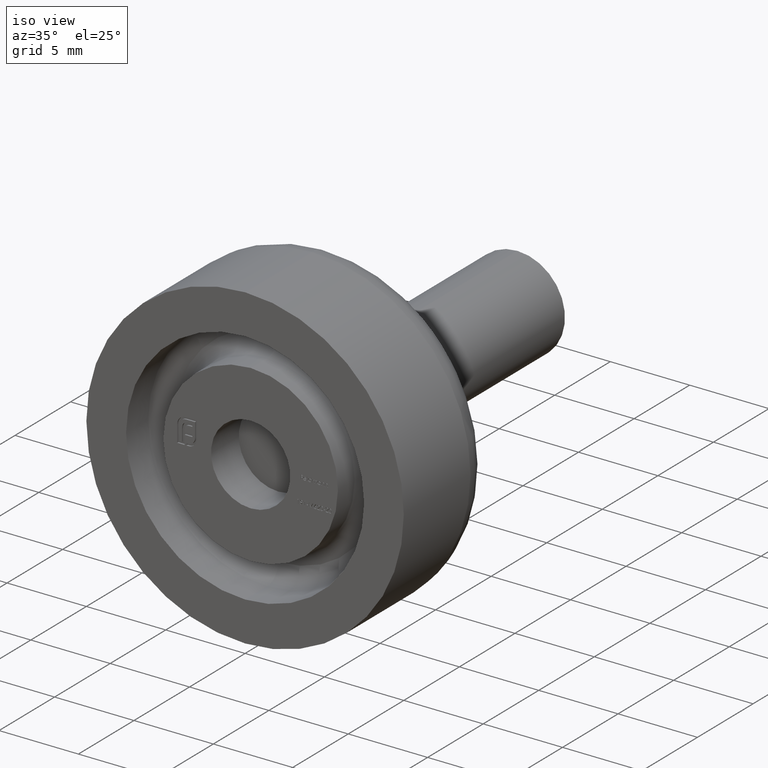
[diagram: clean part render]
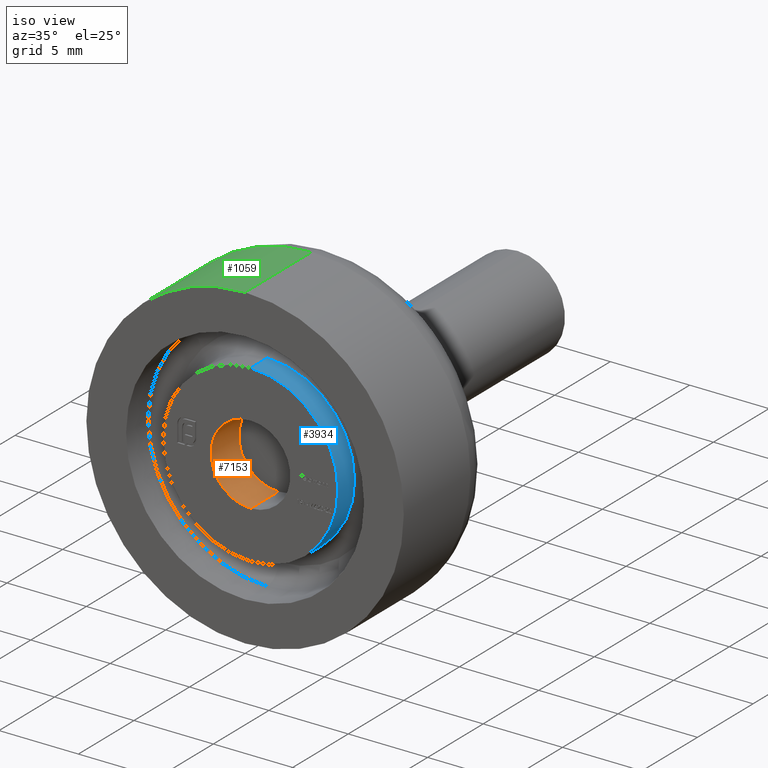
[diagram: same view with three faces highlighted in distinct colors, each labeled with its STEP entity id]
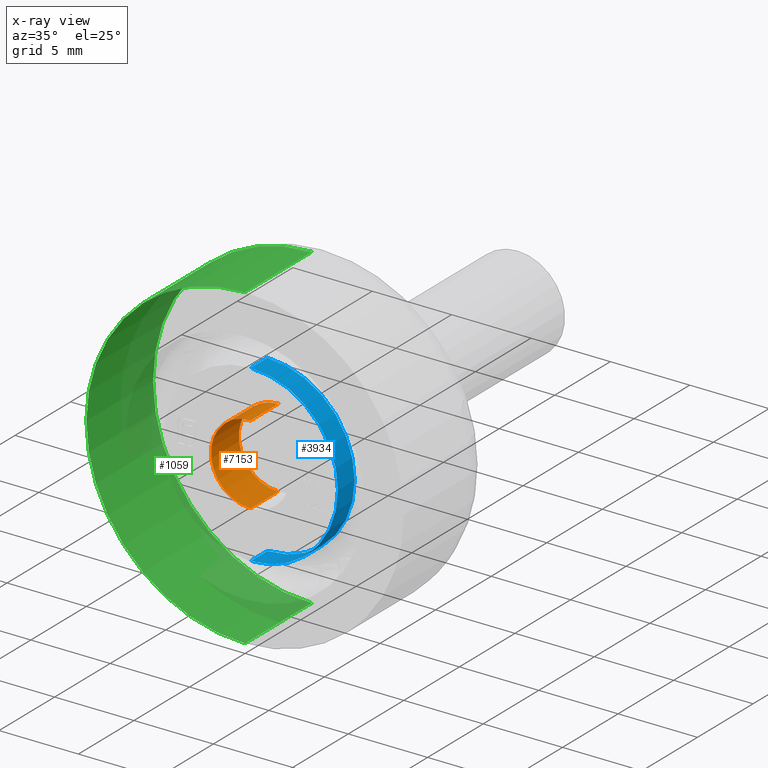
[diagram: x-ray of the same camera — body ghosted, the three highlighted faces saturated]
A machine part, iso view with three faces highlighted in distinct colors.
The next image is the same camera in x-ray (body ghosted, the three faces saturated) — at least one of them is partly hidden behind the body in this view.
Their STEP definitions:

[orange] entity #7153 — the highlighted cylindrical surface (partial cylindrical patch) has radius 2.5 mm, axis along (-0, 1, -0).
#451 = EDGE_CURVE ( 'NONE', #2375, #1538, #3740, .T. ) ;
#1047 = EDGE_CURVE ( 'NONE', #11882, #5082, #9180, .T. ) ;
#1098 = ORIENTED_EDGE ( 'NONE', *, *, #1047, .F. ) ;
#1327 = EDGE_LOOP ( 'NONE', ( #13178, #8715, #11558, #1098 ) ) ;
#1538 = VERTEX_POINT ( 'NONE', #7606 ) ;
#2375 = VERTEX_POINT ( 'NONE', #13333 ) ;
#3657 = CIRCLE ( 'NONE', #14172, 2.500000000000000000 ) ;
#3740 = LINE ( 'NONE', #11678, #6463 ) ;
#3771 = AXIS2_PLACEMENT_3D ( 'NONE', #10233, #9116, #13636 ) ;
#4021 = CYLINDRICAL_SURFACE ( 'NONE', #6062, 2.500000000000000000 ) ;
#4855 = CARTESIAN_POINT ( 'NONE',  ( 0.000000000000000000, -15.55634918610404682, 0.000000000000000000 ) ) ;
#5082 = VERTEX_POINT ( 'NONE', #7376 ) ;
#5354 = CARTESIAN_POINT ( 'NONE',  ( 0.000000000000000000, 0.5000000000000004441, 2.500000000000000000 ) ) ;
#5612 = DIRECTION ( 'NONE',  ( -0.000000000000000000, 1.000000000000000000, -0.000000000000000000 ) ) ;
#6062 = AXIS2_PLACEMENT_3D ( 'NONE', #4855, #12833, #11877 ) ;
#6228 = EDGE_CURVE ( 'NONE', #11882, #2375, #14678, .T. ) ;
#6463 = VECTOR ( 'NONE', #5612, 1000.000000000000000 ) ;
#6834 = CARTESIAN_POINT ( 'NONE',  ( 0.000000000000000000, 2.999999999999999112, 0.000000000000000000 ) ) ;
#7153 = ADVANCED_FACE ( 'NONE', ( #9100 ), #4021, .F. ) ;
#7376 = CARTESIAN_POINT ( 'NONE',  ( 0.000000000000000000, 2.999999999999999112, 2.500000000000000000 ) ) ;
#7606 = CARTESIAN_POINT ( 'NONE',  ( 3.061616997868383141E-16, 2.999999999999999112, -2.500000000000000000 ) ) ;
#8715 = ORIENTED_EDGE ( 'NONE', *, *, #451, .T. ) ;
#9100 = FACE_OUTER_BOUND ( 'NONE', #1327, .T. ) ;
#9116 = DIRECTION ( 'NONE',  ( -0.000000000000000000, -1.000000000000000000, -0.000000000000000000 ) ) ;
#9180 = LINE ( 'NONE', #10517, #13131 ) ;
#9313 = DIRECTION ( 'NONE',  ( -0.000000000000000000, 1.000000000000000000, -0.000000000000000000 ) ) ;
#10233 = CARTESIAN_POINT ( 'NONE',  ( 0.000000000000000000, 0.5000000000000004441, 0.000000000000000000 ) ) ;
#10517 = CARTESIAN_POINT ( 'NONE',  ( 0.000000000000000000, -15.55634918610404682, 2.500000000000000000 ) ) ;
#11558 = ORIENTED_EDGE ( 'NONE', *, *, #11909, .T. ) ;
#11678 = CARTESIAN_POINT ( 'NONE',  ( 3.061616997868383141E-16, -15.55634918610404682, -2.500000000000000000 ) ) ;
#11877 = DIRECTION ( 'NONE',  ( 0.000000000000000000, 0.000000000000000000, 1.000000000000000000 ) ) ;
#11882 = VERTEX_POINT ( 'NONE', #5354 ) ;
#11909 = EDGE_CURVE ( 'NONE', #1538, #5082, #3657, .T. ) ;
#12833 = DIRECTION ( 'NONE',  ( -0.000000000000000000, 1.000000000000000000, -0.000000000000000000 ) ) ;
#13131 = VECTOR ( 'NONE', #9313, 1000.000000000000000 ) ;
#13178 = ORIENTED_EDGE ( 'NONE', *, *, #6228, .T. ) ;
#13333 = CARTESIAN_POINT ( 'NONE',  ( 3.061616997868383141E-16, 0.5000000000000004441, -2.500000000000000000 ) ) ;
#13636 = DIRECTION ( 'NONE',  ( 0.000000000000000000, 0.000000000000000000, -1.000000000000000000 ) ) ;
#13876 = DIRECTION ( 'NONE',  ( 0.000000000000000000, 0.000000000000000000, -1.000000000000000000 ) ) ;
#14172 = AXIS2_PLACEMENT_3D ( 'NONE', #6834, #14981, #13876 ) ;
#14678 = CIRCLE ( 'NONE', #3771, 2.500000000000000000 ) ;
#14981 = DIRECTION ( 'NONE',  ( -0.000000000000000000, 1.000000000000000000, -0.000000000000000000 ) ) ;

[blue] entity #3934 — the highlighted cylindrical surface (partial cylindrical patch) has radius 5.5 mm, axis along (-0, 1, -0).
#19 = DIRECTION ( 'NONE',  ( -0.000000000000000000, 1.000000000000000000, -0.000000000000000000 ) ) ;
#75 = ORIENTED_EDGE ( 'NONE', *, *, #6430, .T. ) ;
#648 = CYLINDRICAL_SURFACE ( 'NONE', #11069, 5.500000000000000000 ) ;
#940 = DIRECTION ( 'NONE',  ( -0.000000000000000000, 1.000000000000000000, -0.000000000000000000 ) ) ;
#970 = CARTESIAN_POINT ( 'NONE',  ( 6.735557395310442023E-16, 0.5000000000000004441, -5.500000000000000000 ) ) ;
#1156 = VECTOR ( 'NONE', #19, 1000.000000000000000 ) ;
#1289 = ORIENTED_EDGE ( 'NONE', *, *, #11276, .F. ) ;
#1518 = LINE ( 'NONE', #8065, #1156 ) ;
#1638 = CARTESIAN_POINT ( 'NONE',  ( 0.000000000000000000, 0.5000000000000004441, 5.500000000000000000 ) ) ;
#2324 = ORIENTED_EDGE ( 'NONE', *, *, #6384, .T. ) ;
#2359 = AXIS2_PLACEMENT_3D ( 'NONE', #4772, #11738, #11591 ) ;
#2623 = CIRCLE ( 'NONE', #2359, 5.500000000000000000 ) ;
#3212 = AXIS2_PLACEMENT_3D ( 'NONE', #12268, #5672, #14597 ) ;
#3613 = CARTESIAN_POINT ( 'NONE',  ( 0.000000000000000000, -15.55634918610404682, 5.500000000000000000 ) ) ;
#3755 = EDGE_CURVE ( 'NONE', #11438, #14776, #10575, .T. ) ;
#3934 = ADVANCED_FACE ( 'NONE', ( #6064 ), #648, .T. ) ;
#4246 = CARTESIAN_POINT ( 'NONE',  ( 0.000000000000000000, 2.000000000000001776, 5.500000000000000000 ) ) ;
#4585 = CARTESIAN_POINT ( 'NONE',  ( 0.000000000000000000, -15.55634918610404682, 0.000000000000000000 ) ) ;
#4772 = CARTESIAN_POINT ( 'NONE',  ( 0.000000000000000000, 2.000000000000001776, 0.000000000000000000 ) ) ;
#5672 = DIRECTION ( 'NONE',  ( -0.000000000000000000, -1.000000000000000000, -0.000000000000000000 ) ) ;
#5963 = VERTEX_POINT ( 'NONE', #4246 ) ;
#6064 = FACE_OUTER_BOUND ( 'NONE', #13880, .T. ) ;
#6384 = EDGE_CURVE ( 'NONE', #11438, #14077, #1518, .T. ) ;
#6430 = EDGE_CURVE ( 'NONE', #14077, #5963, #2623, .T. ) ;
#7297 = VECTOR ( 'NONE', #11714, 1000.000000000000000 ) ;
#7478 = LINE ( 'NONE', #3613, #7297 ) ;
#7876 = DIRECTION ( 'NONE',  ( 0.000000000000000000, 0.000000000000000000, 1.000000000000000000 ) ) ;
#8065 = CARTESIAN_POINT ( 'NONE',  ( 6.735557395310442023E-16, -15.55634918610404682, -5.500000000000000000 ) ) ;
#10575 = CIRCLE ( 'NONE', #3212, 5.500000000000000000 ) ;
#11069 = AXIS2_PLACEMENT_3D ( 'NONE', #4585, #940, #7876 ) ;
#11276 = EDGE_CURVE ( 'NONE', #14776, #5963, #7478, .T. ) ;
#11438 = VERTEX_POINT ( 'NONE', #970 ) ;
#11591 = DIRECTION ( 'NONE',  ( 0.000000000000000000, 0.000000000000000000, -1.000000000000000000 ) ) ;
#11714 = DIRECTION ( 'NONE',  ( -0.000000000000000000, 1.000000000000000000, -0.000000000000000000 ) ) ;
#11738 = DIRECTION ( 'NONE',  ( 0.000000000000000000, -1.000000000000000000, 0.000000000000000000 ) ) ;
#12268 = CARTESIAN_POINT ( 'NONE',  ( 0.000000000000000000, 0.5000000000000004441, 0.000000000000000000 ) ) ;
#13012 = ORIENTED_EDGE ( 'NONE', *, *, #3755, .F. ) ;
#13880 = EDGE_LOOP ( 'NONE', ( #13012, #2324, #75, #1289 ) ) ;
#14077 = VERTEX_POINT ( 'NONE', #14895 ) ;
#14597 = DIRECTION ( 'NONE',  ( 0.000000000000000000, 0.000000000000000000, -1.000000000000000000 ) ) ;
#14776 = VERTEX_POINT ( 'NONE', #1638 ) ;
#14895 = CARTESIAN_POINT ( 'NONE',  ( 6.735557395310442023E-16, 2.000000000000001776, -5.500000000000000000 ) ) ;

[green] entity #1059 — the highlighted cylindrical surface (partial cylindrical patch) has radius 10 mm, axis along (-0, -1, -0).
#78 = CARTESIAN_POINT ( 'NONE',  ( 1.224646799147353256E-15, -1.530808498934191521E-15, 10.00000000000000000 ) ) ;
#1059 = ADVANCED_FACE ( 'NONE', ( #9365 ), #10068, .T. ) ;
#1852 = DIRECTION ( 'NONE',  ( 0.000000000000000000, 0.000000000000000000, 1.000000000000000000 ) ) ;
#1890 = LINE ( 'NONE', #11435, #9319 ) ;
#1910 = CARTESIAN_POINT ( 'NONE',  ( 1.224646799147353256E-15, 0.000000000000000000, 10.00000000000000000 ) ) ;
#2298 = EDGE_CURVE ( 'NONE', #12809, #11740, #4058, .T. ) ;
#3033 = AXIS2_PLACEMENT_3D ( 'NONE', #8654, #9713, #6287 ) ;
#3481 = EDGE_CURVE ( 'NONE', #11740, #14345, #1890, .T. ) ;
#3621 = DIRECTION ( 'NONE',  ( -0.000000000000000000, -1.000000000000000000, -0.000000000000000000 ) ) ;
#4057 = AXIS2_PLACEMENT_3D ( 'NONE', #12300, #11035, #1852 ) ;
#4058 = CIRCLE ( 'NONE', #4057, 10.00000000000000000 ) ;
#4497 = DIRECTION ( 'NONE',  ( -0.000000000000000000, -1.000000000000000000, -0.000000000000000000 ) ) ;
#4801 = DIRECTION ( 'NONE',  ( 0.000000000000000000, 0.000000000000000000, -1.000000000000000000 ) ) ;
#5051 = EDGE_CURVE ( 'NONE', #12809, #10008, #14000, .T. ) ;
#5557 = CARTESIAN_POINT ( 'NONE',  ( 0.000000000000000000, -1.530808498934191521E-15, -10.00000000000000000 ) ) ;
#6093 = CARTESIAN_POINT ( 'NONE',  ( 1.224646799147353256E-15, 5.999999999999998224, 10.00000000000000000 ) ) ;
#6287 = DIRECTION ( 'NONE',  ( 0.000000000000000000, 0.000000000000000000, -1.000000000000000000 ) ) ;
#7709 = EDGE_LOOP ( 'NONE', ( #10050, #11238, #8897, #14445 ) ) ;
#8611 = CARTESIAN_POINT ( 'NONE',  ( 0.000000000000000000, 5.999999999999998224, -10.00000000000000000 ) ) ;
#8654 = CARTESIAN_POINT ( 'NONE',  ( 0.000000000000000000, -1.530808498934191521E-15, 0.000000000000000000 ) ) ;
#8734 = AXIS2_PLACEMENT_3D ( 'NONE', #10426, #3621, #4801 ) ;
#8897 = ORIENTED_EDGE ( 'NONE', *, *, #3481, .T. ) ;
#9319 = VECTOR ( 'NONE', #4497, 1000.000000000000000 ) ;
#9338 = VECTOR ( 'NONE', #13659, 1000.000000000000000 ) ;
#9365 = FACE_OUTER_BOUND ( 'NONE', #7709, .T. ) ;
#9713 = DIRECTION ( 'NONE',  ( -0.000000000000000000, -1.000000000000000000, -0.000000000000000000 ) ) ;
#10008 = VERTEX_POINT ( 'NONE', #78 ) ;
#10050 = ORIENTED_EDGE ( 'NONE', *, *, #5051, .F. ) ;
#10068 = CYLINDRICAL_SURFACE ( 'NONE', #8734, 10.00000000000000000 ) ;
#10426 = CARTESIAN_POINT ( 'NONE',  ( 0.000000000000000000, 0.000000000000000000, 0.000000000000000000 ) ) ;
#10550 = CIRCLE ( 'NONE', #3033, 10.00000000000000000 ) ;
#11035 = DIRECTION ( 'NONE',  ( -0.000000000000000000, -1.000000000000000000, -0.000000000000000000 ) ) ;
#11238 = ORIENTED_EDGE ( 'NONE', *, *, #2298, .T. ) ;
#11435 = CARTESIAN_POINT ( 'NONE',  ( 0.000000000000000000, 0.000000000000000000, -10.00000000000000000 ) ) ;
#11717 = EDGE_CURVE ( 'NONE', #10008, #14345, #10550, .T. ) ;
#11740 = VERTEX_POINT ( 'NONE', #8611 ) ;
#12300 = CARTESIAN_POINT ( 'NONE',  ( 0.000000000000000000, 5.999999999999998224, 0.000000000000000000 ) ) ;
#12809 = VERTEX_POINT ( 'NONE', #6093 ) ;
#13659 = DIRECTION ( 'NONE',  ( -0.000000000000000000, -1.000000000000000000, -0.000000000000000000 ) ) ;
#14000 = LINE ( 'NONE', #1910, #9338 ) ;
#14345 = VERTEX_POINT ( 'NONE', #5557 ) ;
#14445 = ORIENTED_EDGE ( 'NONE', *, *, #11717, .F. ) ;